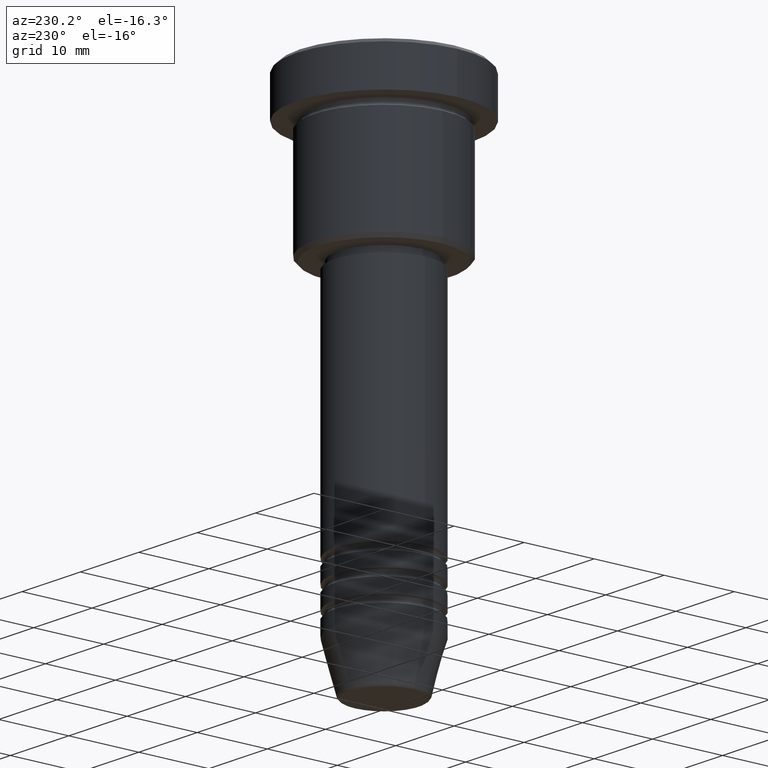
[diagram: clean part render]
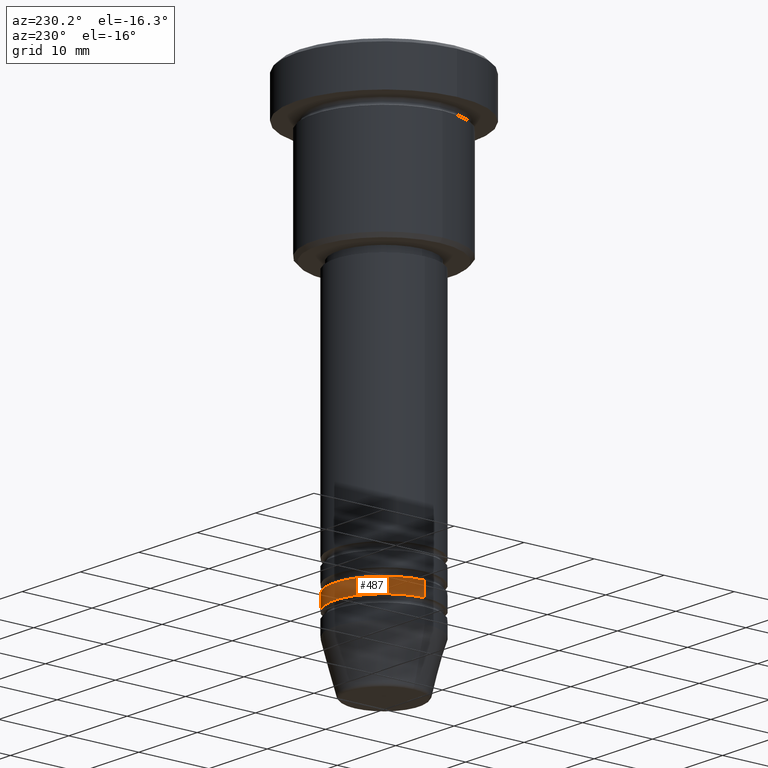
[diagram: same view with one face highlighted and labeled with its STEP entity id]
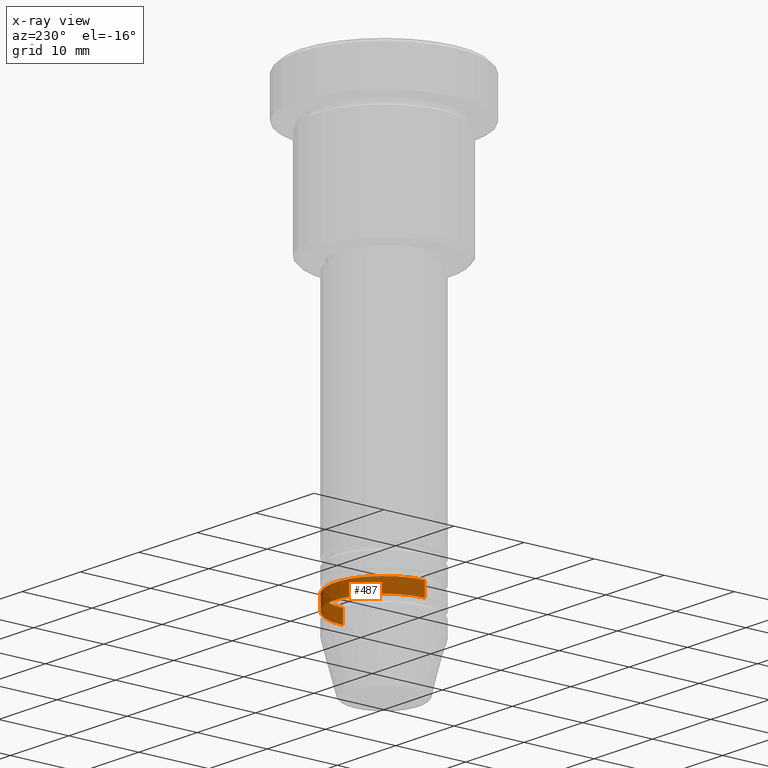
[diagram: x-ray of the same camera — body ghosted, the highlighted face saturated]
A machine part, auxiliary view. The second image highlights one B-rep face of the part: STEP entity #487.
The next image is the same camera in x-ray: the body ghosted, the highlighted face saturated — about 7% of this face is hidden behind the body in this view.
In plain terms, the highlighted cylindrical surface (partial cylindrical patch) has radius 7 mm, axis along (-0, -0, 1).
Its self-contained STEP definition (entity closure, byte-faithful):
#64 = CIRCLE ( 'NONE', #1177, 7.000000000000000000 ) ;
#80 = LINE ( 'NONE', #450, #235 ) ;
#83 = CARTESIAN_POINT ( 'NONE',  ( -7.000000000000000000, 8.572527594031473190E-16, -59.99999999999998579 ) ) ;
#94 = CARTESIAN_POINT ( 'NONE',  ( 7.000000000000000000, 0.000000000000000000, -59.99999999999998579 ) ) ;
#101 = DIRECTION ( 'NONE',  ( -0.000000000000000000, -0.000000000000000000, 1.000000000000000000 ) ) ;
#202 = CARTESIAN_POINT ( 'NONE',  ( 0.000000000000000000, 0.000000000000000000, 0.000000000000000000 ) ) ;
#208 = CARTESIAN_POINT ( 'NONE',  ( 0.000000000000000000, 0.000000000000000000, -61.99999999999998579 ) ) ;
#235 = VECTOR ( 'NONE', #1003, 1000.000000000000000 ) ;
#352 = DIRECTION ( 'NONE',  ( -0.000000000000000000, -0.000000000000000000, 1.000000000000000000 ) ) ;
#364 = AXIS2_PLACEMENT_3D ( 'NONE', #202, #1122, #488 ) ;
#409 = ORIENTED_EDGE ( 'NONE', *, *, #959, .T. ) ;
#450 = CARTESIAN_POINT ( 'NONE',  ( 7.000000000000000000, 0.000000000000000000, 0.000000000000000000 ) ) ;
#465 = VERTEX_POINT ( 'NONE', #752 ) ;
#467 = VERTEX_POINT ( 'NONE', #559 ) ;
#479 = AXIS2_PLACEMENT_3D ( 'NONE', #792, #352, #1172 ) ;
#487 = ADVANCED_FACE ( 'NONE', ( #745 ), #1017, .T. ) ;
#488 = DIRECTION ( 'NONE',  ( 1.000000000000000000, 0.000000000000000000, 0.000000000000000000 ) ) ;
#511 = ORIENTED_EDGE ( 'NONE', *, *, #545, .T. ) ;
#526 = DIRECTION ( 'NONE',  ( -0.000000000000000000, -0.000000000000000000, 1.000000000000000000 ) ) ;
#545 = EDGE_CURVE ( 'NONE', #467, #465, #64, .T. ) ;
#559 = CARTESIAN_POINT ( 'NONE',  ( 7.000000000000000000, 0.000000000000000000, -61.99999999999998579 ) ) ;
#720 = LINE ( 'NONE', #1096, #750 ) ;
#745 = FACE_OUTER_BOUND ( 'NONE', #1012, .T. ) ;
#750 = VECTOR ( 'NONE', #526, 1000.000000000000000 ) ;
#752 = CARTESIAN_POINT ( 'NONE',  ( -7.000000000000000000, 8.572527594031473190E-16, -61.99999999999998579 ) ) ;
#772 = ORIENTED_EDGE ( 'NONE', *, *, #829, .F. ) ;
#792 = CARTESIAN_POINT ( 'NONE',  ( 0.000000000000000000, 0.000000000000000000, -59.99999999999998579 ) ) ;
#799 = VERTEX_POINT ( 'NONE', #83 ) ;
#829 = EDGE_CURVE ( 'NONE', #903, #799, #1083, .T. ) ;
#903 = VERTEX_POINT ( 'NONE', #94 ) ;
#904 = ORIENTED_EDGE ( 'NONE', *, *, #911, .F. ) ;
#911 = EDGE_CURVE ( 'NONE', #467, #903, #80, .T. ) ;
#959 = EDGE_CURVE ( 'NONE', #465, #799, #720, .T. ) ;
#1003 = DIRECTION ( 'NONE',  ( -0.000000000000000000, -0.000000000000000000, 1.000000000000000000 ) ) ;
#1012 = EDGE_LOOP ( 'NONE', ( #511, #409, #772, #904 ) ) ;
#1017 = CYLINDRICAL_SURFACE ( 'NONE', #364, 7.000000000000000000 ) ;
#1023 = DIRECTION ( 'NONE',  ( 1.000000000000000000, 0.000000000000000000, 0.000000000000000000 ) ) ;
#1083 = CIRCLE ( 'NONE', #479, 7.000000000000000000 ) ;
#1096 = CARTESIAN_POINT ( 'NONE',  ( -7.000000000000000000, 8.572527594031473190E-16, 0.000000000000000000 ) ) ;
#1122 = DIRECTION ( 'NONE',  ( -0.000000000000000000, -0.000000000000000000, 1.000000000000000000 ) ) ;
#1172 = DIRECTION ( 'NONE',  ( 1.000000000000000000, 0.000000000000000000, 0.000000000000000000 ) ) ;
#1177 = AXIS2_PLACEMENT_3D ( 'NONE', #208, #101, #1023 ) ;